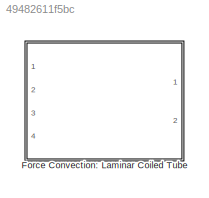
MODEL slx_49482611f5bc
KIND library
CONFIG AbsTol = auto
CONFIG FixedStep = auto
CONFIG MaxStep = auto
CONFIG MinStep = auto
CONFIG RelTol = 1e-3
CONFIG SampleTimeConstraint = Unconstrained
CONFIG Solver = ode45
CONFIG SolverMode = Auto
CONFIG SolverName = ode45
CONFIG StartTime = 0.0
CONFIG StopTime = 10.0
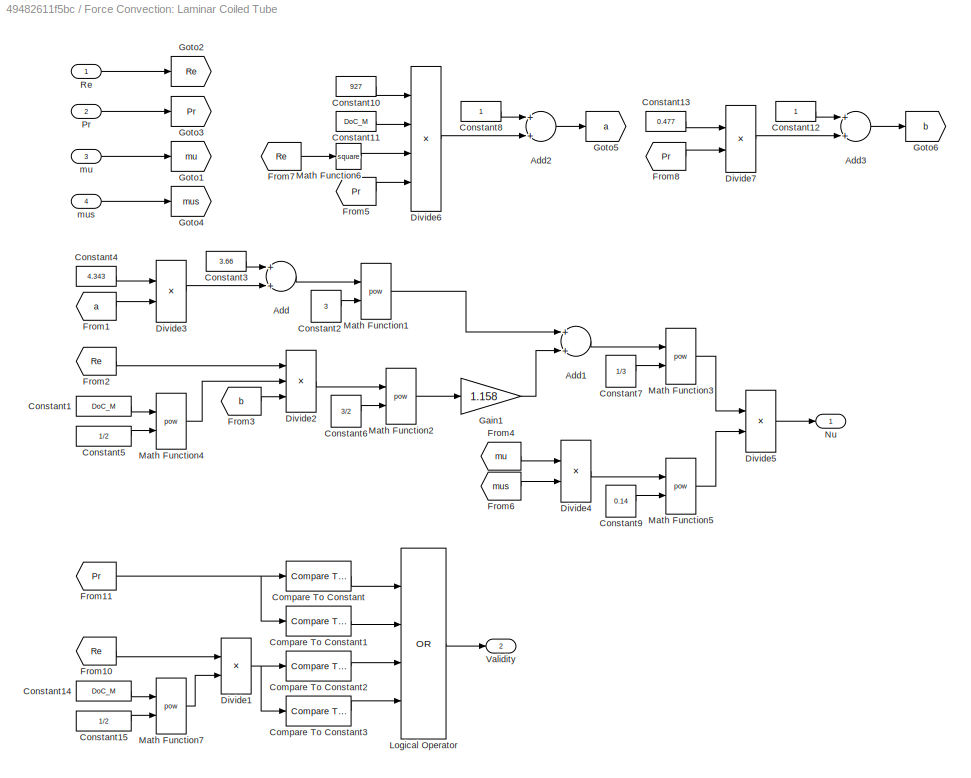
BLOCK [SubSystem] Force Convection: Laminar Coiled Tube
  Ports = [4, 2]
  RequestExecContextInheritance = off
BLOCK [Sum] Force Convection: Laminar Coiled Tube/Add
  InputSameDT = off
  OutDataTypeStr = Inherit: Inherit via internal rule
  Ports = [2, 1]
  SaturateOnIntegerOverflow = off
BLOCK [Sum] Force Convection: Laminar Coiled Tube/Add1
  InputSameDT = off
  OutDataTypeStr = Inherit: Inherit via internal rule
  Ports = [2, 1]
  SaturateOnIntegerOverflow = off
BLOCK [Sum] Force Convection: Laminar Coiled Tube/Add2
  InputSameDT = off
  OutDataTypeStr = Inherit: Inherit via internal rule
  Ports = [2, 1]
  SaturateOnIntegerOverflow = off
BLOCK [Sum] Force Convection: Laminar Coiled Tube/Add3
  InputSameDT = off
  OutDataTypeStr = Inherit: Inherit via internal rule
  Ports = [2, 1]
  SaturateOnIntegerOverflow = off
BLOCK [Reference] Force Convection: Laminar Coiled Tube/Compare To Constant  REF=simulink/Logic and Bit
Operations/Compare
To Constant
  OutDataTypeStr = boolean
  Ports = [1, 1]
  SourceBlock = simulink/Logic and Bit\nOperations/Compare\nTo Constant
  SourceType = Compare To Constant
  ZeroCross = on
  const = 0.005
  relop = <
BLOCK [Reference] Force Convection: Laminar Coiled Tube/Compare To Constant1  REF=simulink/Logic and Bit
Operations/Compare
To Constant
  OutDataTypeStr = boolean
  Ports = [1, 1]
  SourceBlock = simulink/Logic and Bit\nOperations/Compare\nTo Constant
  SourceType = Compare To Constant
  ZeroCross = on
  const = 1600
  relop = >
BLOCK [Reference] Force Convection: Laminar Coiled Tube/Compare To Constant2  REF=simulink/Logic and Bit
Operations/Compare
To Constant
  OutDataTypeStr = boolean
  Ports = [1, 1]
  SourceBlock = simulink/Logic and Bit\nOperations/Compare\nTo Constant
  SourceType = Compare To Constant
  ZeroCross = on
  const = 1
  relop = <
BLOCK [Reference] Force Convection: Laminar Coiled Tube/Compare To Constant3  REF=simulink/Logic and Bit
Operations/Compare
To Constant
  OutDataTypeStr = boolean
  Ports = [1, 1]
  SourceBlock = simulink/Logic and Bit\nOperations/Compare\nTo Constant
  SourceType = Compare To Constant
  ZeroCross = on
  const = 1000
  relop = >
BLOCK [Constant] Force Convection: Laminar Coiled Tube/Constant1
  Value = DoC_M
BLOCK [Constant] Force Convection: Laminar Coiled Tube/Constant10
  Value = 927
BLOCK [Constant] Force Convection: Laminar Coiled Tube/Constant11
  Value = DoC_M
BLOCK [Constant] Force Convection: Laminar Coiled Tube/Constant12
BLOCK [Constant] Force Convection: Laminar Coiled Tube/Constant13
  Value = 0.477
BLOCK [Constant] Force Convection: Laminar Coiled Tube/Constant14
  Value = DoC_M
BLOCK [Constant] Force Convection: Laminar Coiled Tube/Constant15
  Value = 1/2
BLOCK [Constant] Force Convection: Laminar Coiled Tube/Constant2
  Value = 3
BLOCK [Constant] Force Convection: Laminar Coiled Tube/Constant3
  Value = 3.66
BLOCK [Constant] Force Convection: Laminar Coiled Tube/Constant4
  Value = 4.343
BLOCK [Constant] Force Convection: Laminar Coiled Tube/Constant5
  Value = 1/2
BLOCK [Constant] Force Convection: Laminar Coiled Tube/Constant6
  Value = 3/2
BLOCK [Constant] Force Convection: Laminar Coiled Tube/Constant7
  Value = 1/3
BLOCK [Constant] Force Convection: Laminar Coiled Tube/Constant8
BLOCK [Constant] Force Convection: Laminar Coiled Tube/Constant9
  Value = 0.14
BLOCK [Product] Force Convection: Laminar Coiled Tube/Divide1
  InputSameDT = off
  Inputs = **
  OutDataTypeStr = Inherit: Inherit via internal rule
  Ports = [2, 1]
  RndMeth = Floor
  SaturateOnIntegerOverflow = off
BLOCK [Product] Force Convection: Laminar Coiled Tube/Divide2
  InputSameDT = off
  Inputs = **/
  OutDataTypeStr = Inherit: Inherit via internal rule
  Ports = [3, 1]
  RndMeth = Floor
  SaturateOnIntegerOverflow = off
BLOCK [Product] Force Convection: Laminar Coiled Tube/Divide3
  InputSameDT = off
  Inputs = */
  OutDataTypeStr = Inherit: Inherit via internal rule
  Ports = [2, 1]
  RndMeth = Floor
  SaturateOnIntegerOverflow = off
BLOCK [Product] Force Convection: Laminar Coiled Tube/Divide4
  InputSameDT = off
  Inputs = */
  OutDataTypeStr = Inherit: Inherit via internal rule
  Ports = [2, 1]
  RndMeth = Floor
  SaturateOnIntegerOverflow = off
BLOCK [Product] Force Convection: Laminar Coiled Tube/Divide5
  InputSameDT = off
  Inputs = **
  OutDataTypeStr = Inherit: Inherit via internal rule
  Ports = [2, 1]
  RndMeth = Floor
  SaturateOnIntegerOverflow = off
BLOCK [Product] Force Convection: Laminar Coiled Tube/Divide6
  InputSameDT = off
  Inputs = *///
  OutDataTypeStr = Inherit: Inherit via internal rule
  Ports = [4, 1]
  RndMeth = Floor
  SaturateOnIntegerOverflow = off
BLOCK [Product] Force Convection: Laminar Coiled Tube/Divide7
  InputSameDT = off
  Inputs = */
  OutDataTypeStr = Inherit: Inherit via internal rule
  Ports = [2, 1]
  RndMeth = Floor
  SaturateOnIntegerOverflow = off
BLOCK [From] Force Convection: Laminar Coiled Tube/From1
  GotoTag = a
BLOCK [From] Force Convection: Laminar Coiled Tube/From10
  GotoTag = Re
BLOCK [From] Force Convection: Laminar Coiled Tube/From11
  GotoTag = Pr
BLOCK [From] Force Convection: Laminar Coiled Tube/From2
  GotoTag = Re
BLOCK [From] Force Convection: Laminar Coiled Tube/From3
  GotoTag = b
BLOCK [From] Force Convection: Laminar Coiled Tube/From4
  GotoTag = mu
BLOCK [From] Force Convection: Laminar Coiled Tube/From5
  GotoTag = Pr
BLOCK [From] Force Convection: Laminar Coiled Tube/From6
  GotoTag = mus
BLOCK [From] Force Convection: Laminar Coiled Tube/From7
  GotoTag = Re
BLOCK [From] Force Convection: Laminar Coiled Tube/From8
  GotoTag = Pr
BLOCK [Gain] Force Convection: Laminar Coiled Tube/Gain1
  Gain = 1.158
  OutDataTypeStr = Inherit: Inherit via internal rule
  ParamDataTypeStr = Inherit: Inherit via internal rule
  SaturateOnIntegerOverflow = off
BLOCK [Goto] Force Convection: Laminar Coiled Tube/Goto1
  GotoTag = mu
BLOCK [Goto] Force Convection: Laminar Coiled Tube/Goto2
  GotoTag = Re
BLOCK [Goto] Force Convection: Laminar Coiled Tube/Goto3
  GotoTag = Pr
BLOCK [Goto] Force Convection: Laminar Coiled Tube/Goto4
  GotoTag = mus
BLOCK [Goto] Force Convection: Laminar Coiled Tube/Goto5
  GotoTag = a
BLOCK [Goto] Force Convection: Laminar Coiled Tube/Goto6
  GotoTag = b
BLOCK [Logic] Force Convection: Laminar Coiled Tube/Logical Operator
  AllPortsSameDT = off
  Inputs = 4
  Operator = OR
  OutDataTypeStr = boolean
  Ports = [4, 1]
BLOCK [Math] Force Convection: Laminar Coiled Tube/Math Function1
  Operator = pow
  Ports = [2, 1]
BLOCK [Math] Force Convection: Laminar Coiled Tube/Math Function2
  Operator = pow
  Ports = [2, 1]
BLOCK [Math] Force Convection: Laminar Coiled Tube/Math Function3
  Operator = pow
  Ports = [2, 1]
BLOCK [Math] Force Convection: Laminar Coiled Tube/Math Function4
  Operator = pow
  Ports = [2, 1]
BLOCK [Math] Force Convection: Laminar Coiled Tube/Math Function5
  Operator = pow
  Ports = [2, 1]
BLOCK [Math] Force Convection: Laminar Coiled Tube/Math Function6
  Operator = square
  Ports = [1, 1]
BLOCK [Math] Force Convection: Laminar Coiled Tube/Math Function7
  Operator = pow
  Ports = [2, 1]
BLOCK [Outport] Force Convection: Laminar Coiled Tube/Nu
  IconDisplay = Port number
BLOCK [Inport] Force Convection: Laminar Coiled Tube/Pr
  IconDisplay = Port number
  Port = 2
BLOCK [Inport] Force Convection: Laminar Coiled Tube/Re
  IconDisplay = Port number
BLOCK [Outport] Force Convection: Laminar Coiled Tube/Validity
  IconDisplay = Port number
  Port = 2
BLOCK [Inport] Force Convection: Laminar Coiled Tube/mu
  IconDisplay = Port number
  Port = 3
BLOCK [Inport] Force Convection: Laminar Coiled Tube/mus
  IconDisplay = Port number
  Port = 4
LINE Force Convection: Laminar Coiled Tube/Add1:1 -> Force Convection: Laminar Coiled Tube/Math Function3:1
LINE Force Convection: Laminar Coiled Tube/Add2:1 -> Force Convection: Laminar Coiled Tube/Goto5:1
LINE Force Convection: Laminar Coiled Tube/Add3:1 -> Force Convection: Laminar Coiled Tube/Goto6:1
LINE Force Convection: Laminar Coiled Tube/Add:1 -> Force Convection: Laminar Coiled Tube/Math Function1:1
LINE Force Convection: Laminar Coiled Tube/Compare To Constant1:1 -> Force Convection: Laminar Coiled Tube/Logical Operator:2
LINE Force Convection: Laminar Coiled Tube/Compare To Constant2:1 -> Force Convection: Laminar Coiled Tube/Logical Operator:3
LINE Force Convection: Laminar Coiled Tube/Compare To Constant3:1 -> Force Convection: Laminar Coiled Tube/Logical Operator:4
LINE Force Convection: Laminar Coiled Tube/Compare To Constant:1 -> Force Convection: Laminar Coiled Tube/Logical Operator:1
LINE Force Convection: Laminar Coiled Tube/Constant10:1 -> Force Convection: Laminar Coiled Tube/Divide6:1
LINE Force Convection: Laminar Coiled Tube/Constant11:1 -> Force Convection: Laminar Coiled Tube/Divide6:2
LINE Force Convection: Laminar Coiled Tube/Constant12:1 -> Force Convection: Laminar Coiled Tube/Add3:1
LINE Force Convection: Laminar Coiled Tube/Constant13:1 -> Force Convection: Laminar Coiled Tube/Divide7:1
LINE Force Convection: Laminar Coiled Tube/Constant14:1 -> Force Convection: Laminar Coiled Tube/Math Function7:1
LINE Force Convection: Laminar Coiled Tube/Constant15:1 -> Force Convection: Laminar Coiled Tube/Math Function7:2
LINE Force Convection: Laminar Coiled Tube/Constant1:1 -> Force Convection: Laminar Coiled Tube/Math Function4:1
LINE Force Convection: Laminar Coiled Tube/Constant2:1 -> Force Convection: Laminar Coiled Tube/Math Function1:2
LINE Force Convection: Laminar Coiled Tube/Constant3:1 -> Force Convection: Laminar Coiled Tube/Add:1
LINE Force Convection: Laminar Coiled Tube/Constant4:1 -> Force Convection: Laminar Coiled Tube/Divide3:1
LINE Force Convection: Laminar Coiled Tube/Constant5:1 -> Force Convection: Laminar Coiled Tube/Math Function4:2
LINE Force Convection: Laminar Coiled Tube/Constant6:1 -> Force Convection: Laminar Coiled Tube/Math Function2:2
LINE Force Convection: Laminar Coiled Tube/Constant7:1 -> Force Convection: Laminar Coiled Tube/Math Function3:2
LINE Force Convection: Laminar Coiled Tube/Constant8:1 -> Force Convection: Laminar Coiled Tube/Add2:1
LINE Force Convection: Laminar Coiled Tube/Constant9:1 -> Force Convection: Laminar Coiled Tube/Math Function5:2
NET Force Convection: Laminar Coiled Tube/Divide1:1 -> Force Convection: Laminar Coiled Tube/Compare To Constant2:1, Force Convection: Laminar Coiled Tube/Compare To Constant3:1
LINE Force Convection: Laminar Coiled Tube/Divide2:1 -> Force Convection: Laminar Coiled Tube/Math Function2:1
LINE Force Convection: Laminar Coiled Tube/Divide3:1 -> Force Convection: Laminar Coiled Tube/Add:2
LINE Force Convection: Laminar Coiled Tube/Divide4:1 -> Force Convection: Laminar Coiled Tube/Math Function5:1
LINE Force Convection: Laminar Coiled Tube/Divide5:1 -> Force Convection: Laminar Coiled Tube/Nu:1
LINE Force Convection: Laminar Coiled Tube/Divide6:1 -> Force Convection: Laminar Coiled Tube/Add2:2
LINE Force Convection: Laminar Coiled Tube/Divide7:1 -> Force Convection: Laminar Coiled Tube/Add3:2
LINE Force Convection: Laminar Coiled Tube/From10:1 -> Force Convection: Laminar Coiled Tube/Divide1:1
NET Force Convection: Laminar Coiled Tube/From11:1 -> Force Convection: Laminar Coiled Tube/Compare To Constant1:1, Force Convection: Laminar Coiled Tube/Compare To Constant:1
LINE Force Convection: Laminar Coiled Tube/From1:1 -> Force Convection: Laminar Coiled Tube/Divide3:2
LINE Force Convection: Laminar Coiled Tube/From2:1 -> Force Convection: Laminar Coiled Tube/Divide2:1
LINE Force Convection: Laminar Coiled Tube/From3:1 -> Force Convection: Laminar Coiled Tube/Divide2:3
LINE Force Convection: Laminar Coiled Tube/From4:1 -> Force Convection: Laminar Coiled Tube/Divide4:1
LINE Force Convection: Laminar Coiled Tube/From5:1 -> Force Convection: Laminar Coiled Tube/Divide6:4
LINE Force Convection: Laminar Coiled Tube/From6:1 -> Force Convection: Laminar Coiled Tube/Divide4:2
LINE Force Convection: Laminar Coiled Tube/From7:1 -> Force Convection: Laminar Coiled Tube/Math Function6:1
LINE Force Convection: Laminar Coiled Tube/From8:1 -> Force Convection: Laminar Coiled Tube/Divide7:2
LINE Force Convection: Laminar Coiled Tube/Gain1:1 -> Force Convection: Laminar Coiled Tube/Add1:2
LINE Force Convection: Laminar Coiled Tube/Logical Operator:1 -> Force Convection: Laminar Coiled Tube/Validity:1
LINE Force Convection: Laminar Coiled Tube/Math Function1:1 -> Force Convection: Laminar Coiled Tube/Add1:1
LINE Force Convection: Laminar Coiled Tube/Math Function2:1 -> Force Convection: Laminar Coiled Tube/Gain1:1
LINE Force Convection: Laminar Coiled Tube/Math Function3:1 -> Force Convection: Laminar Coiled Tube/Divide5:1
LINE Force Convection: Laminar Coiled Tube/Math Function4:1 -> Force Convection: Laminar Coiled Tube/Divide2:2
LINE Force Convection: Laminar Coiled Tube/Math Function5:1 -> Force Convection: Laminar Coiled Tube/Divide5:2
LINE Force Convection: Laminar Coiled Tube/Math Function6:1 -> Force Convection: Laminar Coiled Tube/Divide6:3
LINE Force Convection: Laminar Coiled Tube/Math Function7:1 -> Force Convection: Laminar Coiled Tube/Divide1:2
LINE Force Convection: Laminar Coiled Tube/Pr:1 -> Force Convection: Laminar Coiled Tube/Goto3:1
LINE Force Convection: Laminar Coiled Tube/Re:1 -> Force Convection: Laminar Coiled Tube/Goto2:1
LINE Force Convection: Laminar Coiled Tube/mu:1 -> Force Convection: Laminar Coiled Tube/Goto1:1
LINE Force Convection: Laminar Coiled Tube/mus:1 -> Force Convection: Laminar Coiled Tube/Goto4:1
note: NET lines group one-source signal fan-out (src -> all destinations, sorted); 1:1 wires keep LINE
